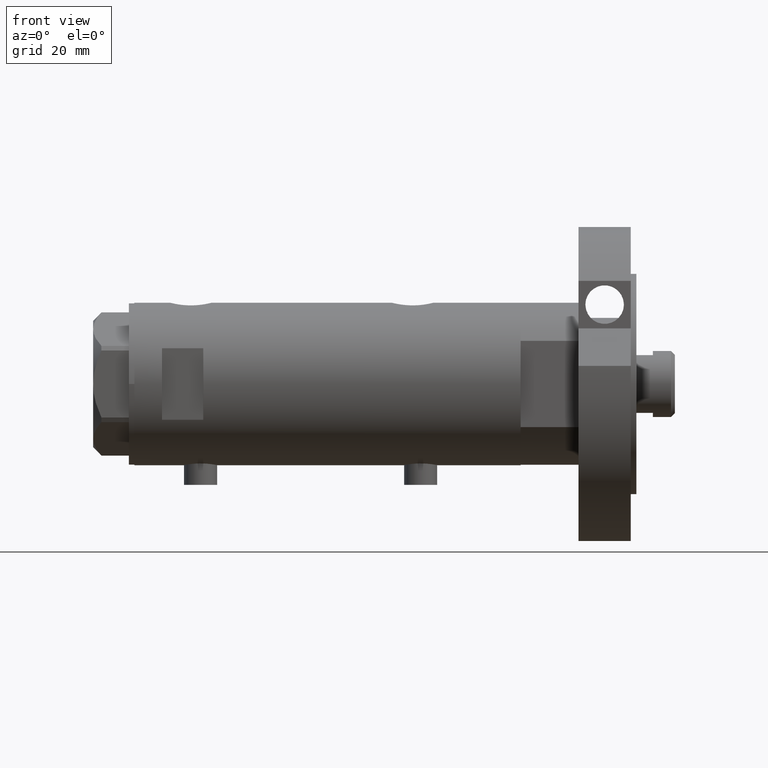
[diagram: clean part render]
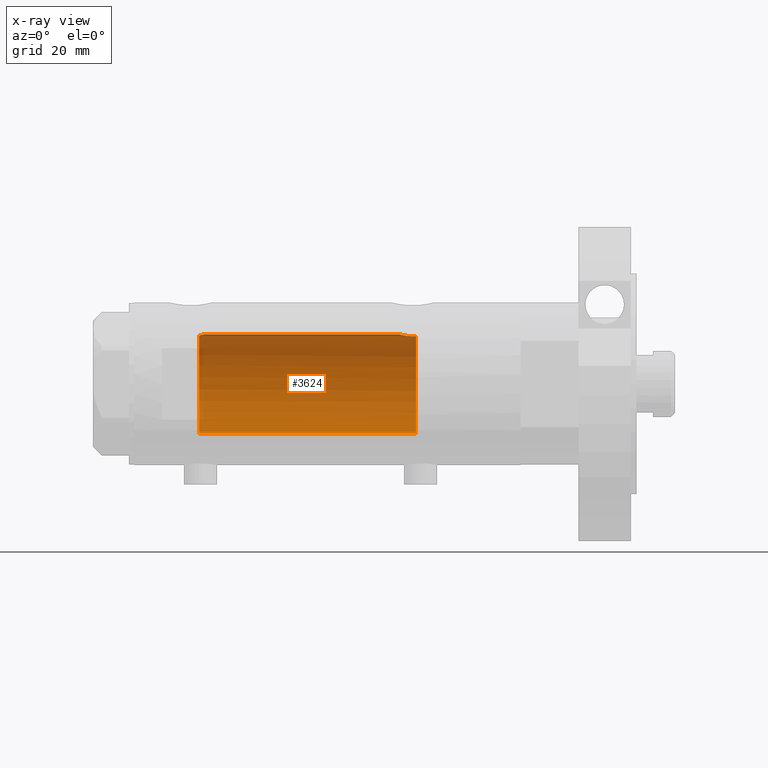
[diagram: x-ray — body ghosted, one internal face saturated and labeled with its STEP entity id]
A machine part, front view, then the same camera in x-ray: the body is ghosted and one INTERNAL B-rep face — a face not visible from any outside direction — is saturated and labeled: STEP entity #3624.
In plain terms, the highlighted cylindrical surface (partial cylindrical patch) has radius 18 mm, axis along (1, 0, -0).
Its self-contained STEP definition (entity closure, byte-faithful):
#5 = CARTESIAN_POINT ( 'NONE',  ( 17.91189082287941403, 1.809824880389074186, -26.36912370284670004 ) ) ;
#78 = CARTESIAN_POINT ( 'NONE',  ( 17.76196254920472128, 2.921230608637938264, 45.70535341986154521 ) ) ;
#115 = CARTESIAN_POINT ( 'NONE',  ( 17.98843015915091570, 0.7391836159806497442, 44.77731130524778536 ) ) ;
#223 = B_SPLINE_CURVE_WITH_KNOTS ( 'NONE', 3,
 ( #1383, #2300, #6091, #3268, #2334, #4223, #5, #1879, #1410, #3297, #4816, #3985, #1166, #5312, #3954, #5378, #5987, #5063, #5121, #5825, #1584, #1221, #5177, #2949, #554, #5743, #3952 ),
 .UNSPECIFIED., .F., .F.,
 ( 4, 2, 2, 2, 2, 2, 2, 2, 2, 2, 1, 2, 2, 4 ),
 ( 0.01528157848519460724, 0.01583467956029641077, 0.01638778063539821778, 0.01749398278560182138, 0.01804708386070362491, 0.01860018493580542845, 0.01915328601090723198, 0.01970638708600903552, 0.02081258923621265300, 0.02136569031131445653, 0.02191879138641626354, 0.02247189246151807054, 0.02302499353661987755, 0.02413119568682350197 ),
 .UNSPECIFIED. ) ;
#452 = EDGE_LOOP ( 'NONE', ( #2845, #5653, #2715, #2837, #3623, #719 ) ) ;
#480 = EDGE_CURVE ( 'NONE', #1927, #5511, #5777, .T. ) ;
#554 = CARTESIAN_POINT ( 'NONE',  ( 17.33262691996380767, 4.855935766715060886, -31.37488940890202116 ) ) ;
#571 = DIRECTION ( 'NONE',  ( 1.000000000000000000, 0.000000000000000000, 0.000000000000000000 ) ) ;
#572 = CIRCLE ( 'NONE', #867, 18.00000000000000000 ) ;
#719 = ORIENTED_EDGE ( 'NONE', *, *, #5646, .F. ) ;
#780 = DIRECTION ( 'NONE',  ( 0.000000000000000000, 0.000000000000000000, -1.000000000000000000 ) ) ;
#833 = DIRECTION ( 'NONE',  ( -0.000000000000000000, -0.000000000000000000, -1.000000000000000000 ) ) ;
#867 = AXIS2_PLACEMENT_3D ( 'NONE', #1234, #780, #3669 ) ;
#888 = AXIS2_PLACEMENT_3D ( 'NONE', #2703, #833, #4628 ) ;
#942 = CARTESIAN_POINT ( 'NONE',  ( 17.83158514913445103, 2.461498934476296085, 45.39965995681277633 ) ) ;
#1166 = CARTESIAN_POINT ( 'NONE',  ( 17.68656644271517209, 3.347025706529860312, -27.36453774950910045 ) ) ;
#1221 = CARTESIAN_POINT ( 'NONE',  ( 17.34085862114803689, 4.826483754267692383, -30.26145238513612057 ) ) ;
#1234 = CARTESIAN_POINT ( 'NONE',  ( 0.000000000000000000, 0.000000000000000000, -32.09999999999998721 ) ) ;
#1383 = CARTESIAN_POINT ( 'NONE',  ( 18.00000000000000000, 5.958021437579254357E-16, -26.03499999999998948 ) ) ;
#1410 = CARTESIAN_POINT ( 'NONE',  ( 17.83051055968251219, 2.469307448774137104, -26.70420614498791778 ) ) ;
#1425 = CARTESIAN_POINT ( 'NONE',  ( 17.91007218376326193, 1.805463612197654166, 45.07866376881659676 ) ) ;
#1581 = EDGE_CURVE ( 'NONE', #4954, #5693, #572, .T. ) ;
#1584 = CARTESIAN_POINT ( 'NONE',  ( 17.35631194664785681, 4.771042759406570077, -29.89667763205954287 ) ) ;
#1879 = CARTESIAN_POINT ( 'NONE',  ( 17.85236636886077832, 2.306694554785103435, -26.61264586133006560 ) ) ;
#1899 = CARTESIAN_POINT ( 'NONE',  ( 17.89217382667230538, 1.974183297225218015, 45.14981302266163965 ) ) ;
#1926 = CARTESIAN_POINT ( 'NONE',  ( 17.58783030962034388, 3.829911878881825160, 46.59999999999998721 ) ) ;
#1927 = VERTEX_POINT ( 'NONE', #3566 ) ;
#1999 = CARTESIAN_POINT ( 'NONE',  ( 18.00000000000001066, 0.3728474842072352358, 44.73499999999999233 ) ) ;
#2133 = DIRECTION ( 'NONE',  ( -0.000000000000000000, -0.000000000000000000, -1.000000000000000000 ) ) ;
#2250 = EDGE_CURVE ( 'NONE', #3181, #4737, #2793, .T. ) ;
#2300 = CARTESIAN_POINT ( 'NONE',  ( 17.99999999999999645, 0.1844036484100888829, -26.03499999999998238 ) ) ;
#2334 = CARTESIAN_POINT ( 'NONE',  ( 17.97733715731490989, 0.9209699998971184742, -26.11935966604423243 ) ) ;
#2637 = CARTESIAN_POINT ( 'NONE',  ( -18.00000000000000000, 0.000000000000000000, -32.09999999999998721 ) ) ;
#2703 = CARTESIAN_POINT ( 'NONE',  ( 0.000000000000000000, 0.000000000000000000, 70.09999999999999432 ) ) ;
#2715 = ORIENTED_EDGE ( 'NONE', *, *, #480, .T. ) ;
#2793 = LINE ( 'NONE', #4690, #4210 ) ;
#2807 = CARTESIAN_POINT ( 'NONE',  ( 0.000000000000000000, 0.000000000000000000, 46.59999999999999432 ) ) ;
#2817 = CARTESIAN_POINT ( 'NONE',  ( 17.85293122918850273, 2.302201220737755794, 45.31031080804816469 ) ) ;
#2837 = ORIENTED_EDGE ( 'NONE', *, *, #5197, .T. ) ;
#2845 = ORIENTED_EDGE ( 'NONE', *, *, #2250, .F. ) ;
#2906 = CARTESIAN_POINT ( 'NONE',  ( 18.00000000000000000, 5.958021437579254357E-16, -26.03499999999998948 ) ) ;
#2949 = CARTESIAN_POINT ( 'NONE',  ( 17.32928165965088141, 4.867855194001449171, -30.81899018256649114 ) ) ;
#3114 = AXIS2_PLACEMENT_3D ( 'NONE', #2807, #3834, #571 ) ;
#3181 = VERTEX_POINT ( 'NONE', #6034 ) ;
#3268 = CARTESIAN_POINT ( 'NONE',  ( 17.98587882862718601, 0.7362002489460850452, -26.08746722239206406 ) ) ;
#3297 = CARTESIAN_POINT ( 'NONE',  ( 17.78478726694684298, 2.779555353823086161, -26.90297143050465323 ) ) ;
#3466 = B_SPLINE_CURVE_WITH_KNOTS ( 'NONE', 3,
 ( #1926, #3811, #4302, #78, #6118, #942, #2817, #1899, #1425, #4935, #4469, #115, #1999, #5978 ),
 .UNSPECIFIED., .F., .F.,
 ( 4, 2, 2, 2, 2, 2, 4 ),
 ( 0.02614985543880328500, 0.02725214354003946404, 0.02780328759065755356, 0.02835443164127564308, 0.02890557569189372913, 0.02945671974251181865, 0.03055900784374799770 ),
 .UNSPECIFIED. ) ;
#3566 = CARTESIAN_POINT ( 'NONE',  ( 17.58783030962034388, 3.829911878881825160, 46.59999999999998721 ) ) ;
#3623 = ORIENTED_EDGE ( 'NONE', *, *, #1581, .T. ) ;
#3624 = ADVANCED_FACE ( 'NONE', ( #5125 ), #4191, .F. ) ;
#3669 = DIRECTION ( 'NONE',  ( -1.000000000000000000, 0.000000000000000000, 0.000000000000000000 ) ) ;
#3811 = CARTESIAN_POINT ( 'NONE',  ( 17.63704841537101231, 3.603891093161669890, 46.31145343596539732 ) ) ;
#3834 = DIRECTION ( 'NONE',  ( 0.000000000000000000, 0.000000000000000000, 1.000000000000000000 ) ) ;
#3952 = CARTESIAN_POINT ( 'NONE',  ( 17.37157951943346745, 4.714681855650494136, -32.09999999999999432 ) ) ;
#3954 = CARTESIAN_POINT ( 'NONE',  ( 17.61032289555864239, 3.726910670425180427, -27.76756985850230564 ) ) ;
#3963 = LINE ( 'NONE', #5474, #5422 ) ;
#3968 = CARTESIAN_POINT ( 'NONE',  ( 17.37157951943346745, 4.714681855650494136, -32.09999999999999432 ) ) ;
#3985 = CARTESIAN_POINT ( 'NONE',  ( 17.71174132276681590, 3.211689381115077513, -27.24121359250870000 ) ) ;
#4191 = CYLINDRICAL_SURFACE ( 'NONE', #888, 18.00000000000000000 ) ;
#4210 = VECTOR ( 'NONE', #4279, 1000.000000000000000 ) ;
#4223 = CARTESIAN_POINT ( 'NONE',  ( 17.94405978035183935, 1.463580074031385569, -26.24553017623723861 ) ) ;
#4279 = DIRECTION ( 'NONE',  ( -0.000000000000000000, -0.000000000000000000, -1.000000000000000000 ) ) ;
#4302 = CARTESIAN_POINT ( 'NONE',  ( 17.68814035493779357, 3.348626323852638365, 46.05183600219630335 ) ) ;
#4469 = CARTESIAN_POINT ( 'NONE',  ( 17.95540531162507136, 1.279032093992328756, 44.90250861430337892 ) ) ;
#4628 = DIRECTION ( 'NONE',  ( -1.000000000000000000, 0.000000000000000000, 0.000000000000000000 ) ) ;
#4690 = CARTESIAN_POINT ( 'NONE',  ( 18.00000000000000000, 2.204364238465235033E-15, 70.09999999999999432 ) ) ;
#4737 = VERTEX_POINT ( 'NONE', #2906 ) ;
#4816 = CARTESIAN_POINT ( 'NONE',  ( 17.76085061188610581, 2.927954048074872251, -27.01043039029092441 ) ) ;
#4866 = EDGE_CURVE ( 'NONE', #1927, #3181, #3466, .T. ) ;
#4935 = CARTESIAN_POINT ( 'NONE',  ( 17.94167814235965608, 1.458276351914867375, 44.95504464479716233 ) ) ;
#4954 = VERTEX_POINT ( 'NONE', #2637 ) ;
#5063 = CARTESIAN_POINT ( 'NONE',  ( 17.43128843254318028, 4.489613141718952427, -29.01700003713170162 ) ) ;
#5121 = CARTESIAN_POINT ( 'NONE',  ( 17.41328271218089796, 4.558641711475907243, -29.19087254718660418 ) ) ;
#5125 = FACE_OUTER_BOUND ( 'NONE', #452, .T. ) ;
#5177 = CARTESIAN_POINT ( 'NONE',  ( 17.33118376015917761, 4.861110225087390546, -30.63112109378173642 ) ) ;
#5197 = EDGE_CURVE ( 'NONE', #5511, #4954, #3963, .T. ) ;
#5312 = CARTESIAN_POINT ( 'NONE',  ( 17.63589737371339083, 3.604488512479873119, -27.62742655266249514 ) ) ;
#5360 = CARTESIAN_POINT ( 'NONE',  ( -18.00000000000000000, 0.000000000000000000, 46.59999999999999432 ) ) ;
#5378 = CARTESIAN_POINT ( 'NONE',  ( 17.53642083926971651, 4.065376572064631766, -28.20260027543615777 ) ) ;
#5422 = VECTOR ( 'NONE', #2133, 1000.000000000000000 ) ;
#5474 = CARTESIAN_POINT ( 'NONE',  ( -18.00000000000000000, 0.000000000000000000, 70.09999999999999432 ) ) ;
#5511 = VERTEX_POINT ( 'NONE', #5360 ) ;
#5646 = EDGE_CURVE ( 'NONE', #4737, #5693, #223, .T. ) ;
#5653 = ORIENTED_EDGE ( 'NONE', *, *, #4866, .F. ) ;
#5693 = VERTEX_POINT ( 'NONE', #3968 ) ;
#5743 = CARTESIAN_POINT ( 'NONE',  ( 17.34671983132639284, 4.806279138776324622, -31.74012329268312271 ) ) ;
#5777 = CIRCLE ( 'NONE', #3114, 18.00000000000000000 ) ;
#5825 = CARTESIAN_POINT ( 'NONE',  ( 17.38237957915197285, 4.675094569549008483, -29.54138980228257338 ) ) ;
#5978 = CARTESIAN_POINT ( 'NONE',  ( 18.00000000000000000, 0.000000000000000000, 44.73499999999999233 ) ) ;
#5987 = CARTESIAN_POINT ( 'NONE',  ( 17.49030773641652914, 4.256160900234553957, -28.51469509681785652 ) ) ;
#6034 = CARTESIAN_POINT ( 'NONE',  ( 18.00000000000000000, 0.000000000000000000, 44.73499999999999233 ) ) ;
#6091 = CARTESIAN_POINT ( 'NONE',  ( 17.99716691696285409, 0.3685254503903831469, -26.04545042928659981 ) ) ;
#6118 = CARTESIAN_POINT ( 'NONE',  ( 17.78617492856930227, 2.770629413254892537, 45.59682049650071178 ) ) ;